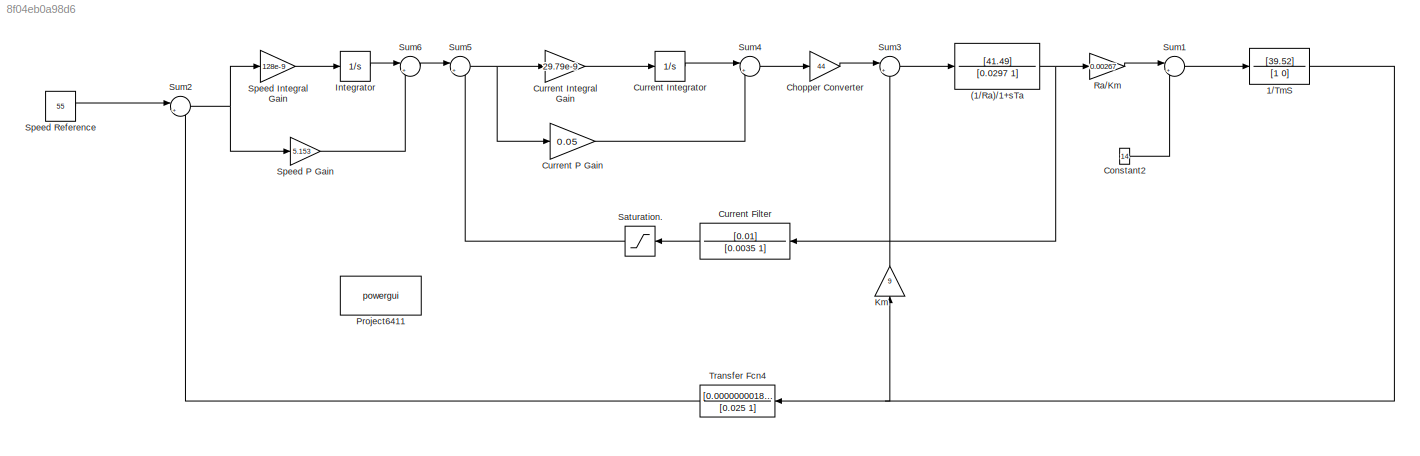
MODEL slx_8f04eb0a98d6
KIND model
CONFIG AbsTol = auto
CONFIG EnableMultiTasking = off
CONFIG FixedStep = auto
CONFIG MaxStep = auto
CONFIG MinStep = auto
CONFIG RelTol = 1e-3
CONFIG SampleTimeConstraint = Unconstrained
CONFIG Solver = VariableStepAuto
CONFIG SolverName = VariableStepAuto
CONFIG StartTime = 0.0
CONFIG StopTime = 1
BLOCK [TransferFcn] (1//Ra)//1+sTa
  Denominator = [0.0297 1]
  Numerator = [41.49]
BLOCK [TransferFcn] 1//TmS
  Denominator = [1 0]
  Numerator = [39.52]
BLOCK [Gain] Chopper Converter
  Gain = 44
  OutDataTypeStr = Inherit: Inherit via internal rule
  ParamDataTypeStr = Inherit: Inherit via internal rule
  SaturateOnIntegerOverflow = off
BLOCK [Constant] Constant2
  Value = 14
BLOCK [TransferFcn] Current Filter
  Denominator = [0.0035 1]
  Numerator = [0.01]
BLOCK [Gain] Current Integral Gain
  Gain = 29.79e-9
  OutDataTypeStr = Inherit: Inherit via internal rule
  ParamDataTypeStr = Inherit: Inherit via internal rule
  SaturateOnIntegerOverflow = off
BLOCK [Integrator] Current Integrator
  Ports = [1, 1]
BLOCK [Gain] Current P Gain
  Gain = 0.05
  OutDataTypeStr = Inherit: Inherit via internal rule
  ParamDataTypeStr = Inherit: Inherit via internal rule
  SaturateOnIntegerOverflow = off
BLOCK [Integrator] Integrator 
  Ports = [1, 1]
BLOCK [Gain] Km
  Gain = 9
  OutDataTypeStr = Inherit: Inherit via internal rule
  ParamDataTypeStr = Inherit: Inherit via internal rule
  SaturateOnIntegerOverflow = off
BLOCK [Reference] Project6411  REF=powerlib/powergui
  Ports = []
  Priority = 1
  SourceBlock = powerlib/powergui
  SourceProductBaseCode = PS
  SourceProductName = Simscape Power Systems
  SourceType = PSB option menu block
BLOCK [Gain] Ra//Km
  Gain = 0.00267
  OutDataTypeStr = Inherit: Inherit via internal rule
  ParamDataTypeStr = Inherit: Inherit via internal rule
  SaturateOnIntegerOverflow = off
BLOCK [Saturate] Saturation.
  InputPortMap = u0
  LowerLimit = 0
  Ports = [1, 1]
  UpperLimit = 1
BLOCK [Gain] Speed Integral Gain
  Gain = 128e-9
  OutDataTypeStr = Inherit: Inherit via internal rule
  ParamDataTypeStr = Inherit: Inherit via internal rule
  SaturateOnIntegerOverflow = off
BLOCK [Gain] Speed P Gain
  Gain = 5.153
  OutDataTypeStr = Inherit: Inherit via internal rule
  ParamDataTypeStr = Inherit: Inherit via internal rule
  SaturateOnIntegerOverflow = off
BLOCK [Constant] Speed Reference
  Value = 55
BLOCK [Sum] Sum1
  IconShape = round
  InputSameDT = off
  Inputs = |+-
  OutDataTypeStr = Inherit: Inherit via internal rule
  Ports = [2, 1]
  SaturateOnIntegerOverflow = off
BLOCK [Sum] Sum2
  IconShape = round
  InputSameDT = off
  Inputs = |+-
  OutDataTypeStr = Inherit: Inherit via internal rule
  Ports = [2, 1]
  SaturateOnIntegerOverflow = off
BLOCK [Sum] Sum3
  IconShape = round
  InputSameDT = off
  Inputs = |+-
  OutDataTypeStr = Inherit: Inherit via internal rule
  Ports = [2, 1]
  SaturateOnIntegerOverflow = off
BLOCK [Sum] Sum4
  IconShape = round
  InputSameDT = off
  Inputs = |++
  OutDataTypeStr = Inherit: Inherit via internal rule
  Ports = [2, 1]
  SaturateOnIntegerOverflow = off
BLOCK [Sum] Sum5
  IconShape = round
  InputSameDT = off
  Inputs = |+-
  OutDataTypeStr = Inherit: Inherit via internal rule
  Ports = [2, 1]
  SaturateOnIntegerOverflow = off
BLOCK [Sum] Sum6
  IconShape = round
  InputSameDT = off
  Inputs = |++
  OutDataTypeStr = Inherit: Inherit via internal rule
  Ports = [2, 1]
  SaturateOnIntegerOverflow = off
BLOCK [TransferFcn] Transfer Fcn4
  Denominator = [0.025 1]
  Numerator = [0.00000000181]
NET (1//Ra)//1+sTa:1 -> Current Filter:1, Ra//Km:1
NET 1//TmS:1 -> Km:1, Transfer Fcn4:1
LINE Chopper Converter:1 -> Sum3:1
LINE Constant2:1 -> Sum1:2
LINE Current Filter:1 -> Saturation.:1
LINE Current Integral Gain:1 -> Current Integrator:1
LINE Current Integrator:1 -> Sum4:1
LINE Current P Gain:1 -> Sum4:2
LINE Integrator :1 -> Sum6:1
LINE Km:1 -> Sum3:2
LINE Ra//Km:1 -> Sum1:1
LINE Saturation.:1 -> Sum5:2
LINE Speed Integral Gain:1 -> Integrator :1
LINE Speed P Gain:1 -> Sum6:2
LINE Speed Reference:1 -> Sum2:1
LINE Sum1:1 -> 1//TmS:1
NET Sum2:1 -> Speed Integral Gain:1, Speed P Gain:1
LINE Sum3:1 -> (1//Ra)//1+sTa:1
LINE Sum4:1 -> Chopper Converter:1
NET Sum5:1 -> Current Integral Gain:1, Current P Gain:1
LINE Sum6:1 -> Sum5:1
LINE Transfer Fcn4:1 -> Sum2:2
note: NET lines group one-source signal fan-out (src -> all destinations, sorted); 1:1 wires keep LINE
